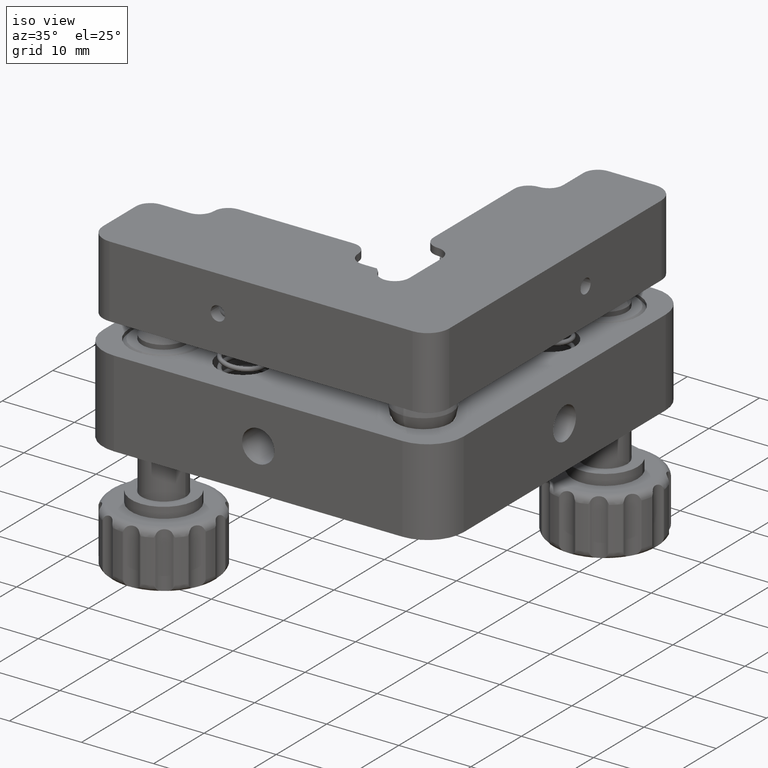
[diagram: clean part render]
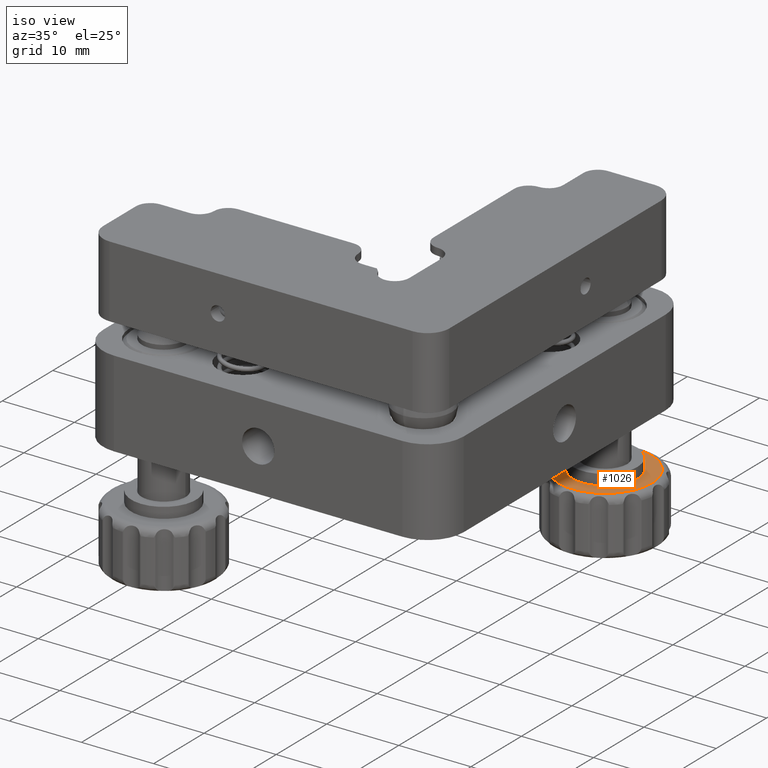
[diagram: same view with one face highlighted and labeled with its STEP entity id]
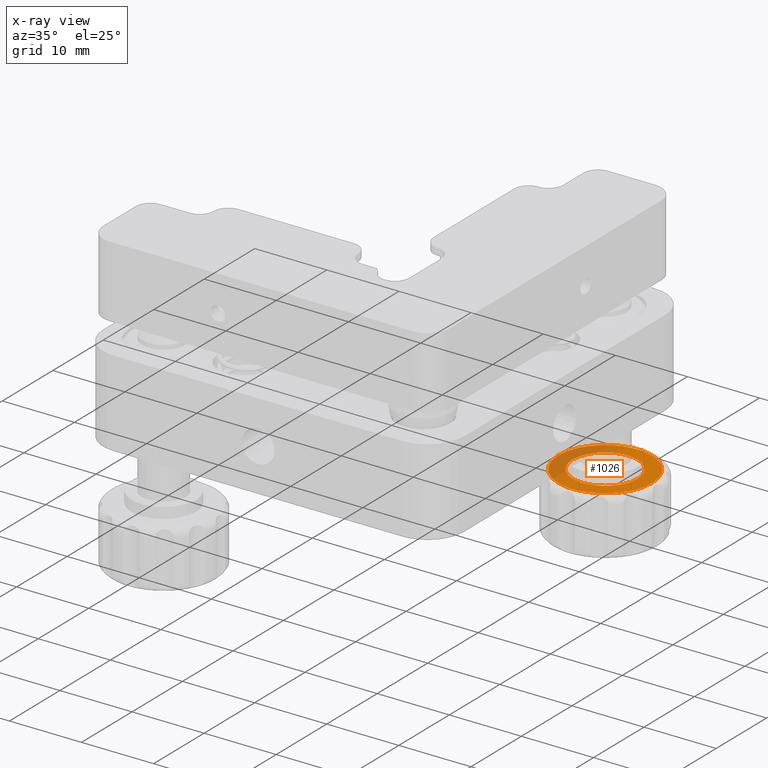
[diagram: x-ray of the same camera — body ghosted, the highlighted face saturated]
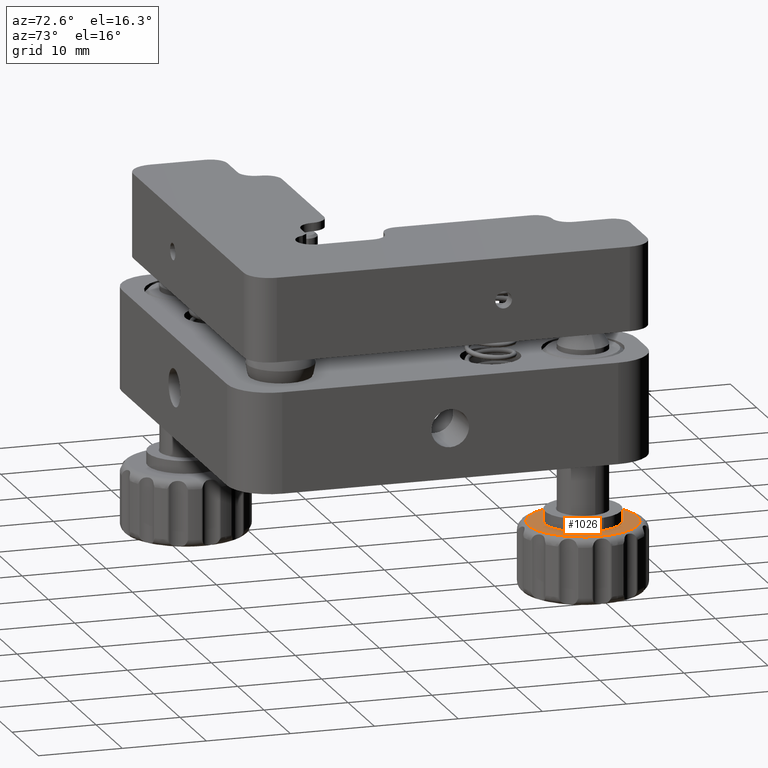
[diagram: same view with one face highlighted and labeled with its STEP entity id]
A machine part, iso view. The second image highlights one B-rep face of the part: STEP entity #1026.
The next image is the same camera in x-ray: the body ghosted, the highlighted face saturated — about 34% of this face is hidden behind the body in this view.
A second angle (auxiliary view) of the same face is appended — the face is thin or edge-on in the first view.
In plain terms, the highlighted planar face has unit normal (-0, 0, -1).
Its self-contained STEP definition (entity closure, byte-faithful):
#377 = EDGE_LOOP ( 'NONE', ( #14834, #564 ) ) ;
#468 = CIRCLE ( 'NONE', #8024, 6.500000000000020428 ) ;
#564 = ORIENTED_EDGE ( 'NONE', *, *, #7094, .F. ) ;
#671 = VERTEX_POINT ( 'NONE', #4942 ) ;
#730 = VERTEX_POINT ( 'NONE', #14435 ) ;
#1026 = ADVANCED_FACE ( 'NONE', ( #1605, #16369 ), #9848, .F. ) ;
#1165 = CARTESIAN_POINT ( 'NONE',  ( 18.00000000000004974, 17.99999999999999645, -23.50041507641943284 ) ) ;
#1476 = EDGE_LOOP ( 'NONE', ( #4001, #2349 ) ) ;
#1594 = DIRECTION ( 'NONE',  ( -0.9681941527301309858, -0.2502000851702168571, 0.000000000000000000 ) ) ;
#1605 = FACE_OUTER_BOUND ( 'NONE', #1476, .T. ) ;
#1774 = DIRECTION ( 'NONE',  ( 6.271672922119195220E-18, -6.585351383577223838E-17, 1.000000000000000000 ) ) ;
#2343 = AXIS2_PLACEMENT_3D ( 'NONE', #16680, #3481, #4796 ) ;
#2349 = ORIENTED_EDGE ( 'NONE', *, *, #9022, .T. ) ;
#3098 = DIRECTION ( 'NONE',  ( -0.9681941527301306527, -0.2502000851702179118, 3.287206613789007955E-17 ) ) ;
#3481 = DIRECTION ( 'NONE',  ( 6.271672922119195220E-18, -6.585351383577223838E-17, 1.000000000000000000 ) ) ;
#4001 = ORIENTED_EDGE ( 'NONE', *, *, #14344, .T. ) ;
#4009 = CIRCLE ( 'NONE', #2343, 4.500000000000013323 ) ;
#4796 = DIRECTION ( 'NONE',  ( -0.9681941527301307637, -0.2502000851702179118, 0.000000000000000000 ) ) ;
#4942 = CARTESIAN_POINT ( 'NONE',  ( 22.35687368728564195, 19.12590038326596442, -23.50041507641943284 ) ) ;
#5540 = CIRCLE ( 'NONE', #8906, 6.500000000000020428 ) ;
#5634 = CARTESIAN_POINT ( 'NONE',  ( 24.29326199274591502, 19.62630055360641634, -23.50041507641943284 ) ) ;
#5971 = CIRCLE ( 'NONE', #15804, 4.500000000000013323 ) ;
#6328 = DIRECTION ( 'NONE',  ( -0.9681941527301305417, -0.2502000851702190221, 0.000000000000000000 ) ) ;
#6761 = CARTESIAN_POINT ( 'NONE',  ( 18.00000000000004974, 17.99999999999999645, -23.50041507641943284 ) ) ;
#7094 = EDGE_CURVE ( 'NONE', #671, #16121, #4009, .T. ) ;
#7230 = EDGE_CURVE ( 'NONE', #16121, #671, #5971, .T. ) ;
#7900 = DIRECTION ( 'NONE',  ( 6.271672922119195220E-18, -6.585351383577223838E-17, 1.000000000000000000 ) ) ;
#8024 = AXIS2_PLACEMENT_3D ( 'NONE', #6761, #1774, #1594 ) ;
#8308 = AXIS2_PLACEMENT_3D ( 'NONE', #12322, #13724, #3098 ) ;
#8906 = AXIS2_PLACEMENT_3D ( 'NONE', #1165, #7900, #6328 ) ;
#9022 = EDGE_CURVE ( 'NONE', #11255, #730, #468, .T. ) ;
#9848 = PLANE ( 'NONE',  #8308 ) ;
#10587 = CARTESIAN_POINT ( 'NONE',  ( 18.00000000000004974, 17.99999999999999645, -23.50041507641943284 ) ) ;
#11255 = VERTEX_POINT ( 'NONE', #5634 ) ;
#11594 = CARTESIAN_POINT ( 'NONE',  ( 13.64312631271445042, 16.87409961673401071, -23.50041507641943284 ) ) ;
#12322 = CARTESIAN_POINT ( 'NONE',  ( 18.00000000000004974, 17.99999999999999645, -23.50041507641943284 ) ) ;
#13724 = DIRECTION ( 'NONE',  ( -4.817165345185365687E-17, 5.502574890080661817E-17, -1.000000000000000000 ) ) ;
#14344 = EDGE_CURVE ( 'NONE', #730, #11255, #5540, .T. ) ;
#14435 = CARTESIAN_POINT ( 'NONE',  ( 11.70673800725417735, 16.37369944639356945, -23.50041507641943284 ) ) ;
#14834 = ORIENTED_EDGE ( 'NONE', *, *, #7230, .F. ) ;
#15708 = DIRECTION ( 'NONE',  ( -0.9681941527301307637, -0.2502000851702179118, 0.000000000000000000 ) ) ;
#15804 = AXIS2_PLACEMENT_3D ( 'NONE', #10587, #17028, #15708 ) ;
#16121 = VERTEX_POINT ( 'NONE', #11594 ) ;
#16369 = FACE_BOUND ( 'NONE', #377, .T. ) ;
#16680 = CARTESIAN_POINT ( 'NONE',  ( 18.00000000000004974, 17.99999999999999645, -23.50041507641943284 ) ) ;
#17028 = DIRECTION ( 'NONE',  ( 6.271672922119195220E-18, -6.585351383577223838E-17, 1.000000000000000000 ) ) ;